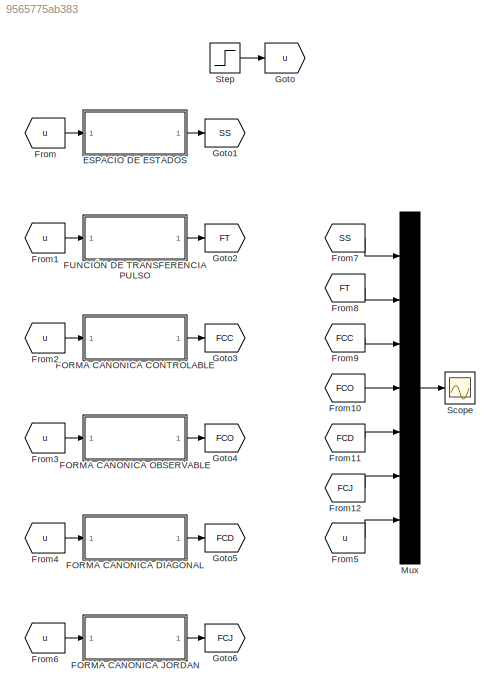
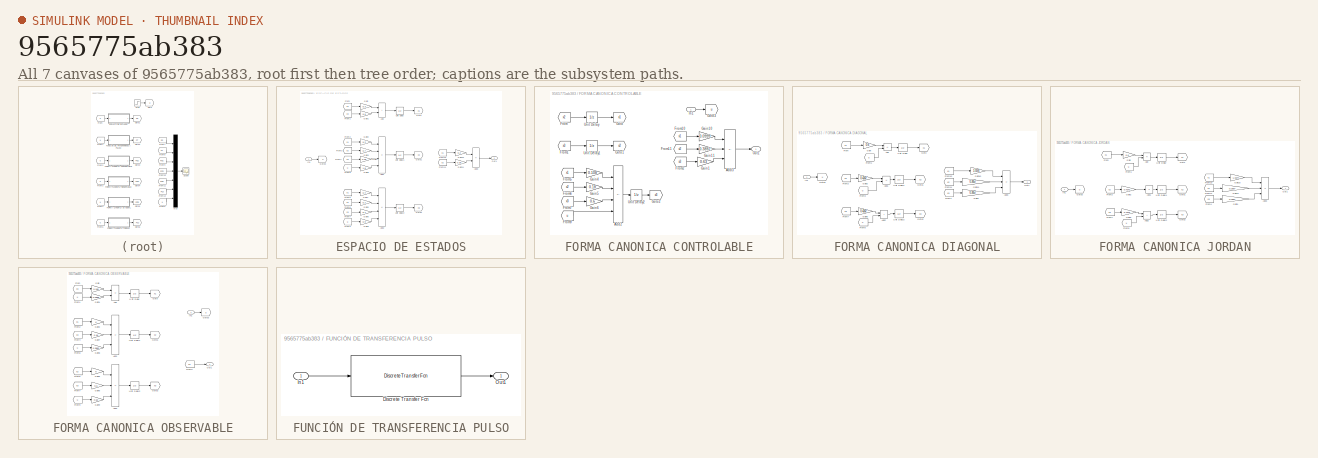
[diagram: thumbnail index - all 7 canvases of the model, root first then tree order]
MODEL slx_9565775ab383
KIND model
CONFIG AbsTol = auto
CONFIG EnableMultiTasking = off
CONFIG FixedStep = 0.001
CONFIG MaxStep = auto
CONFIG MinStep = auto
CONFIG RelTol = 1e-3
CONFIG SampleTimeConstraint = Unconstrained
CONFIG SolverName = FixedStepDiscrete
CONFIG StartTime = 0.0
CONFIG StopTime = 0.2
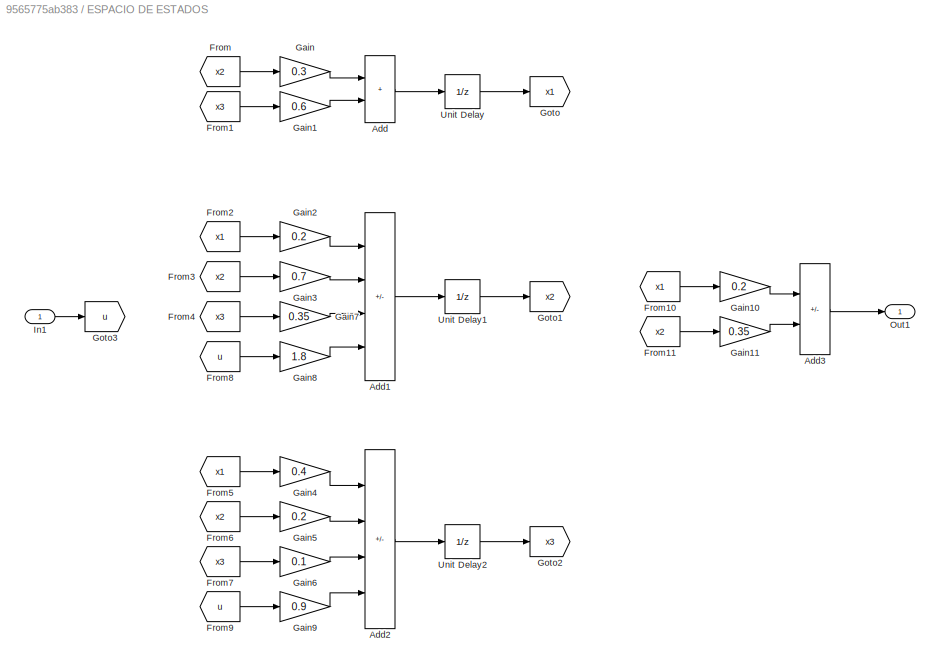
BLOCK [SubSystem] ESPACIO DE ESTADOS
  Ports = [1, 1]
  RequestExecContextInheritance = off
BLOCK [Sum] ESPACIO DE ESTADOS/Add
  IconShape = rectangular
  Ports = [2, 1]
BLOCK [Sum] ESPACIO DE ESTADOS/Add1
  IconShape = rectangular
  Inputs = +--+
  Ports = [4, 1]
BLOCK [Sum] ESPACIO DE ESTADOS/Add2
  IconShape = rectangular
  Inputs = -+++
  Ports = [4, 1]
BLOCK [Sum] ESPACIO DE ESTADOS/Add3
  IconShape = rectangular
  Inputs = +-
  Ports = [2, 1]
BLOCK [From] ESPACIO DE ESTADOS/From
  GotoTag = x2
BLOCK [From] ESPACIO DE ESTADOS/From1
  GotoTag = x3
BLOCK [From] ESPACIO DE ESTADOS/From10
  GotoTag = x1
BLOCK [From] ESPACIO DE ESTADOS/From11
  GotoTag = x2
BLOCK [From] ESPACIO DE ESTADOS/From2
  GotoTag = x1
BLOCK [From] ESPACIO DE ESTADOS/From3
  GotoTag = x2
BLOCK [From] ESPACIO DE ESTADOS/From4
  GotoTag = x3
BLOCK [From] ESPACIO DE ESTADOS/From5
  GotoTag = x1
BLOCK [From] ESPACIO DE ESTADOS/From6
  GotoTag = x2
BLOCK [From] ESPACIO DE ESTADOS/From7
  GotoTag = x3
BLOCK [From] ESPACIO DE ESTADOS/From8
  GotoTag = u
BLOCK [From] ESPACIO DE ESTADOS/From9
  GotoTag = u
BLOCK [Gain] ESPACIO DE ESTADOS/Gain
  Gain = 0.3
BLOCK [Gain] ESPACIO DE ESTADOS/Gain1
  Gain = 0.6
BLOCK [Gain] ESPACIO DE ESTADOS/Gain10
  Gain = 0.2
BLOCK [Gain] ESPACIO DE ESTADOS/Gain11
  Gain = 0.35
BLOCK [Gain] ESPACIO DE ESTADOS/Gain2
  Gain = 0.2
BLOCK [Gain] ESPACIO DE ESTADOS/Gain3
  Gain = 0.7
BLOCK [Gain] ESPACIO DE ESTADOS/Gain4
  Gain = 0.4
BLOCK [Gain] ESPACIO DE ESTADOS/Gain5
  Gain = 0.2
BLOCK [Gain] ESPACIO DE ESTADOS/Gain6
  Gain = 0.1
BLOCK [Gain] ESPACIO DE ESTADOS/Gain7
  Gain = 0.35
BLOCK [Gain] ESPACIO DE ESTADOS/Gain8
  Gain = 1.8
BLOCK [Gain] ESPACIO DE ESTADOS/Gain9
  Gain = 0.9
BLOCK [Goto] ESPACIO DE ESTADOS/Goto
  GotoTag = x1
BLOCK [Goto] ESPACIO DE ESTADOS/Goto1
  GotoTag = x2
BLOCK [Goto] ESPACIO DE ESTADOS/Goto2
  GotoTag = x3
BLOCK [Goto] ESPACIO DE ESTADOS/Goto3
  GotoTag = u
BLOCK [Inport] ESPACIO DE ESTADOS/In1
BLOCK [Outport] ESPACIO DE ESTADOS/Out1
BLOCK [UnitDelay] ESPACIO DE ESTADOS/Unit Delay
  HasFrameUpgradeWarning = on
  SampleTime = -1
BLOCK [UnitDelay] ESPACIO DE ESTADOS/Unit Delay1
  HasFrameUpgradeWarning = on
  SampleTime = -1
BLOCK [UnitDelay] ESPACIO DE ESTADOS/Unit Delay2
  HasFrameUpgradeWarning = on
  SampleTime = -1
BLOCK [SubSystem] FORMA CANONICA CONTROLABLE
  Ports = [1, 1]
  RequestExecContextInheritance = off
BLOCK [Sum] FORMA CANONICA CONTROLABLE/Add2
  IconShape = rectangular
  Inputs = ---+
  Ports = [4, 1]
BLOCK [Sum] FORMA CANONICA CONTROLABLE/Add3
  IconShape = rectangular
  Inputs = -+-
  Ports = [3, 1]
BLOCK [From] FORMA CANONICA CONTROLABLE/From
  GotoTag = x2
BLOCK [From] FORMA CANONICA CONTROLABLE/From1
  GotoTag = x3
BLOCK [From] FORMA CANONICA CONTROLABLE/From10
  GotoTag = x1
BLOCK [From] FORMA CANONICA CONTROLABLE/From11
  GotoTag = x2
BLOCK [From] FORMA CANONICA CONTROLABLE/From2
  GotoTag = x3
BLOCK [From] FORMA CANONICA CONTROLABLE/From5
  GotoTag = x1
BLOCK [From] FORMA CANONICA CONTROLABLE/From6
  GotoTag = x2
BLOCK [From] FORMA CANONICA CONTROLABLE/From7
  GotoTag = x3
BLOCK [From] FORMA CANONICA CONTROLABLE/From9
  GotoTag = u
BLOCK [Gain] FORMA CANONICA CONTROLABLE/Gain1
  Gain = 0.63
BLOCK [Gain] FORMA CANONICA CONTROLABLE/Gain10
  Gain = 0.0999
BLOCK [Gain] FORMA CANONICA CONTROLABLE/Gain11
  Gain = 0.3892
BLOCK [Gain] FORMA CANONICA CONTROLABLE/Gain4
  Gain = 0.108
BLOCK [Gain] FORMA CANONICA CONTROLABLE/Gain5
  Gain = 0.18
BLOCK [Gain] FORMA CANONICA CONTROLABLE/Gain6
  Gain = 0.6
BLOCK [Goto] FORMA CANONICA CONTROLABLE/Goto
  GotoTag = x1
BLOCK [Goto] FORMA CANONICA CONTROLABLE/Goto1
  GotoTag = x2
BLOCK [Goto] FORMA CANONICA CONTROLABLE/Goto2
  GotoTag = x3
BLOCK [Goto] FORMA CANONICA CONTROLABLE/Goto3
  GotoTag = u
BLOCK [Inport] FORMA CANONICA CONTROLABLE/In1
BLOCK [Outport] FORMA CANONICA CONTROLABLE/Out1
BLOCK [UnitDelay] FORMA CANONICA CONTROLABLE/Unit Delay
  HasFrameUpgradeWarning = on
  SampleTime = -1
BLOCK [UnitDelay] FORMA CANONICA CONTROLABLE/Unit Delay1
  HasFrameUpgradeWarning = on
  SampleTime = -1
BLOCK [UnitDelay] FORMA CANONICA CONTROLABLE/Unit Delay2
  HasFrameUpgradeWarning = on
  SampleTime = -1
BLOCK [SubSystem] FORMA CANONICA DIAGONAL
  Ports = [1, 1]
  RequestExecContextInheritance = off
BLOCK [Sum] FORMA CANONICA DIAGONAL/Add
  IconShape = rectangular
  Inputs = -+
  Ports = [2, 1]
BLOCK [Sum] FORMA CANONICA DIAGONAL/Add1
  IconShape = rectangular
  Inputs = -+
  Ports = [2, 1]
BLOCK [Sum] FORMA CANONICA DIAGONAL/Add2
  IconShape = rectangular
  Ports = [2, 1]
BLOCK [Sum] FORMA CANONICA DIAGONAL/Add3
  IconShape = rectangular
  Inputs = -++
  Ports = [3, 1]
BLOCK [From] FORMA CANONICA DIAGONAL/From
  GotoTag = x1
BLOCK [From] FORMA CANONICA DIAGONAL/From1
  GotoTag = u
BLOCK [From] FORMA CANONICA DIAGONAL/From10
  GotoTag = x1
BLOCK [From] FORMA CANONICA DIAGONAL/From11
  GotoTag = x2
BLOCK [From] FORMA CANONICA DIAGONAL/From2
  GotoTag = x2
BLOCK [From] FORMA CANONICA DIAGONAL/From3
  GotoTag = u
BLOCK [From] FORMA CANONICA DIAGONAL/From4
  GotoTag = x3
BLOCK [From] FORMA CANONICA DIAGONAL/From5
  GotoTag = u
BLOCK [From] FORMA CANONICA DIAGONAL/From7
  GotoTag = x3
BLOCK [Gain] FORMA CANONICA DIAGONAL/Gain
  Gain = 0.6
BLOCK [Gain] FORMA CANONICA DIAGONAL/Gain1
  Gain = 0.2657
  OutDataTypeStr = double
BLOCK [Gain] FORMA CANONICA DIAGONAL/Gain10
  Gain = 1.0374
BLOCK [Gain] FORMA CANONICA DIAGONAL/Gain11
  Gain = 0.2657
  OutDataTypeStr = double
BLOCK [Gain] FORMA CANONICA DIAGONAL/Gain2
  Gain = 0.4242
BLOCK [Gain] FORMA CANONICA DIAGONAL/Gain6
  Gain = 0.4242
BLOCK [Goto] FORMA CANONICA DIAGONAL/Goto
  GotoTag = x1
BLOCK [Goto] FORMA CANONICA DIAGONAL/Goto1
  GotoTag = x2
BLOCK [Goto] FORMA CANONICA DIAGONAL/Goto2
  GotoTag = x3
BLOCK [Goto] FORMA CANONICA DIAGONAL/Goto3
  GotoTag = u
BLOCK [Inport] FORMA CANONICA DIAGONAL/In1
BLOCK [Outport] FORMA CANONICA DIAGONAL/Out1
BLOCK [UnitDelay] FORMA CANONICA DIAGONAL/Unit Delay
  HasFrameUpgradeWarning = on
  SampleTime = -1
BLOCK [UnitDelay] FORMA CANONICA DIAGONAL/Unit Delay1
  HasFrameUpgradeWarning = on
  SampleTime = -1
BLOCK [UnitDelay] FORMA CANONICA DIAGONAL/Unit Delay2
  HasFrameUpgradeWarning = on
  SampleTime = -1
BLOCK [SubSystem] FORMA CANONICA JORDAN
  Ports = [1, 1]
  RequestExecContextInheritance = off
BLOCK [Sum] FORMA CANONICA JORDAN/Add
  IconShape = rectangular
  Inputs = -+
  Ports = [2, 1]
BLOCK [Sum] FORMA CANONICA JORDAN/Add1
  IconShape = rectangular
  Inputs = -
  Ports = [1, 1]
BLOCK [Sum] FORMA CANONICA JORDAN/Add2
  IconShape = rectangular
  Ports = [2, 1]
BLOCK [Sum] FORMA CANONICA JORDAN/Add3
  IconShape = rectangular
  Inputs = -++
  Ports = [3, 1]
BLOCK [From] FORMA CANONICA JORDAN/From
  GotoTag = x1
BLOCK [From] FORMA CANONICA JORDAN/From1
  GotoTag = u
BLOCK [From] FORMA CANONICA JORDAN/From10
  GotoTag = x1
BLOCK [From] FORMA CANONICA JORDAN/From11
  GotoTag = x2
BLOCK [From] FORMA CANONICA JORDAN/From2
  GotoTag = x2
BLOCK [From] FORMA CANONICA JORDAN/From4
  GotoTag = x3
BLOCK [From] FORMA CANONICA JORDAN/From5
  GotoTag = u
BLOCK [From] FORMA CANONICA JORDAN/From7
  GotoTag = x3
BLOCK [Gain] FORMA CANONICA JORDAN/Gain
  Gain = 0.6
BLOCK [Gain] FORMA CANONICA JORDAN/Gain1
  Gain = 0.2657
  OutDataTypeStr = double
BLOCK [Gain] FORMA CANONICA JORDAN/Gain10
  Gain = 1.0374
BLOCK [Gain] FORMA CANONICA JORDAN/Gain11
  Gain = 0.2657
  OutDataTypeStr = double
BLOCK [Gain] FORMA CANONICA JORDAN/Gain2
  Gain = 0.4242
BLOCK [Gain] FORMA CANONICA JORDAN/Gain6
  Gain = 0.4242
BLOCK [Goto] FORMA CANONICA JORDAN/Goto
  GotoTag = x1
BLOCK [Goto] FORMA CANONICA JORDAN/Goto1
  GotoTag = x2
BLOCK [Goto] FORMA CANONICA JORDAN/Goto2
  GotoTag = x3
BLOCK [Goto] FORMA CANONICA JORDAN/Goto3
  GotoTag = u
BLOCK [Inport] FORMA CANONICA JORDAN/In1
BLOCK [Outport] FORMA CANONICA JORDAN/Out1
BLOCK [UnitDelay] FORMA CANONICA JORDAN/Unit Delay
  HasFrameUpgradeWarning = on
  SampleTime = -1
BLOCK [UnitDelay] FORMA CANONICA JORDAN/Unit Delay1
  HasFrameUpgradeWarning = on
  SampleTime = -1
BLOCK [UnitDelay] FORMA CANONICA JORDAN/Unit Delay2
  HasFrameUpgradeWarning = on
  SampleTime = -1
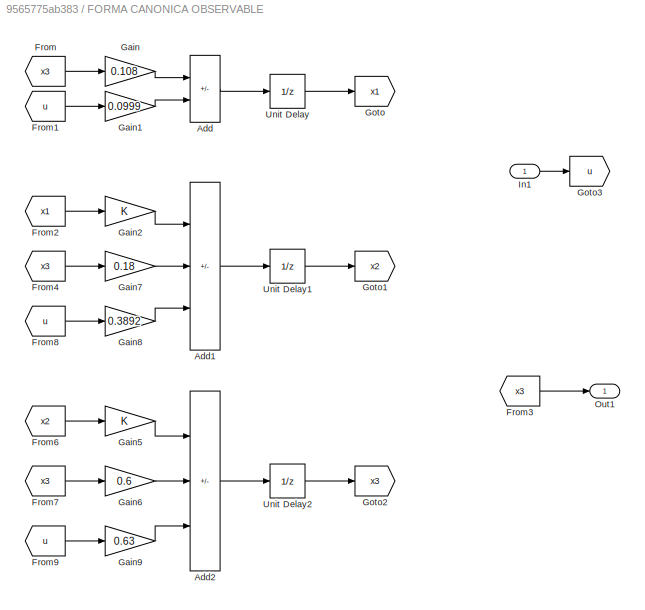
BLOCK [SubSystem] FORMA CANONICA OBSERVABLE
  Ports = [1, 1]
  RequestExecContextInheritance = off
BLOCK [Sum] FORMA CANONICA OBSERVABLE/Add
  IconShape = rectangular
  Inputs = --
  Ports = [2, 1]
BLOCK [Sum] FORMA CANONICA OBSERVABLE/Add1
  IconShape = rectangular
  Inputs = +-+
  Ports = [3, 1]
BLOCK [Sum] FORMA CANONICA OBSERVABLE/Add2
  IconShape = rectangular
  Inputs = +--
  Ports = [3, 1]
BLOCK [From] FORMA CANONICA OBSERVABLE/From
  GotoTag = x3
BLOCK [From] FORMA CANONICA OBSERVABLE/From1
  GotoTag = u
BLOCK [From] FORMA CANONICA OBSERVABLE/From2
  GotoTag = x1
BLOCK [From] FORMA CANONICA OBSERVABLE/From3
  GotoTag = x3
BLOCK [From] FORMA CANONICA OBSERVABLE/From4
  GotoTag = x3
BLOCK [From] FORMA CANONICA OBSERVABLE/From6
  GotoTag = x2
BLOCK [From] FORMA CANONICA OBSERVABLE/From7
  GotoTag = x3
BLOCK [From] FORMA CANONICA OBSERVABLE/From8
  GotoTag = u
BLOCK [From] FORMA CANONICA OBSERVABLE/From9
  GotoTag = u
BLOCK [Gain] FORMA CANONICA OBSERVABLE/Gain
  Gain = 0.108
BLOCK [Gain] FORMA CANONICA OBSERVABLE/Gain1
  Gain = 0.0999
BLOCK [Gain] FORMA CANONICA OBSERVABLE/Gain2
BLOCK [Gain] FORMA CANONICA OBSERVABLE/Gain5
BLOCK [Gain] FORMA CANONICA OBSERVABLE/Gain6
  Gain = 0.6
BLOCK [Gain] FORMA CANONICA OBSERVABLE/Gain7
  Gain = 0.18
BLOCK [Gain] FORMA CANONICA OBSERVABLE/Gain8
  Gain = 0.3892
BLOCK [Gain] FORMA CANONICA OBSERVABLE/Gain9
  Gain = 0.63
BLOCK [Goto] FORMA CANONICA OBSERVABLE/Goto
  GotoTag = x1
BLOCK [Goto] FORMA CANONICA OBSERVABLE/Goto1
  GotoTag = x2
BLOCK [Goto] FORMA CANONICA OBSERVABLE/Goto2
  GotoTag = x3
BLOCK [Goto] FORMA CANONICA OBSERVABLE/Goto3
  GotoTag = u
BLOCK [Inport] FORMA CANONICA OBSERVABLE/In1
BLOCK [Outport] FORMA CANONICA OBSERVABLE/Out1
BLOCK [UnitDelay] FORMA CANONICA OBSERVABLE/Unit Delay
  HasFrameUpgradeWarning = on
  SampleTime = -1
BLOCK [UnitDelay] FORMA CANONICA OBSERVABLE/Unit Delay1
  HasFrameUpgradeWarning = on
  SampleTime = -1
BLOCK [UnitDelay] FORMA CANONICA OBSERVABLE/Unit Delay2
  HasFrameUpgradeWarning = on
  SampleTime = -1
BLOCK [SubSystem] FUNCIÓN DE TRANSFERENCIA PULSO
  Ports = [1, 1]
  RequestExecContextInheritance = off
BLOCK [DiscreteTransferFcn] FUNCIÓN DE TRANSFERENCIA PULSO/Discrete Transfer Fcn
  Denominator = [1 0.6 0.18 0.108]
  InputPortMap = u0
  Numerator = [-0.63 0.38925 -0.0999]
  Ports = [1, 1]
BLOCK [Inport] FUNCIÓN DE TRANSFERENCIA PULSO/In1
BLOCK [Outport] FUNCIÓN DE TRANSFERENCIA PULSO/Out1
BLOCK [From] From
  GotoTag = u
BLOCK [From] From1
  GotoTag = u
BLOCK [From] From10
  GotoTag = FCO
BLOCK [From] From11
  GotoTag = FCD
BLOCK [From] From12
  GotoTag = FCJ
BLOCK [From] From2
  GotoTag = u
BLOCK [From] From3
  GotoTag = u
BLOCK [From] From4
  GotoTag = u
BLOCK [From] From5
  GotoTag = u
BLOCK [From] From6
  GotoTag = u
BLOCK [From] From7
  GotoTag = SS
BLOCK [From] From8
  GotoTag = FT
BLOCK [From] From9
  GotoTag = FCC
BLOCK [Goto] Goto
  GotoTag = u
BLOCK [Goto] Goto1
  GotoTag = SS
BLOCK [Goto] Goto2
  GotoTag = FT
BLOCK [Goto] Goto3
  GotoTag = FCC
BLOCK [Goto] Goto4
  GotoTag = FCO
BLOCK [Goto] Goto5
  GotoTag = FCD
BLOCK [Goto] Goto6
  GotoTag = FCJ
BLOCK [Mux] Mux
  DisplayOption = bar
  Inputs = 7
  Ports = [7, 1]
BLOCK [Scope] Scope
  Floating = off
  NumInputPorts = 1
  Ports = [1]
  ScopeSpecificationString = Simulink.scopes.TimeScopeBlockCfg('CurrentConfiguration', extmgr.ConfigurationSet(extmgr.Configuration('Core','General UI',true),extmgr.Configuration('Core','Source UI',true),extmgr.Configuration('Sources','WiredSimulink',true),extmgr.Configuration('Visuals','Time Domain',true,'SerializedDisplays',{struct('MinYLimReal','-0.66187','MaxYLimReal','0.16571','YLabelReal','','MinYLimMag','0.00000','MaxY...<+1531ch>
BLOCK [Step] Step
  SampleTime = 0
  Time = 0
LINE ESPACIO DE ESTADOS/Add1:1 -> ESPACIO DE ESTADOS/Unit Delay1:1
LINE ESPACIO DE ESTADOS/Add2:1 -> ESPACIO DE ESTADOS/Unit Delay2:1
LINE ESPACIO DE ESTADOS/Add3:1 -> ESPACIO DE ESTADOS/Out1:1
LINE ESPACIO DE ESTADOS/Add:1 -> ESPACIO DE ESTADOS/Unit Delay:1
LINE ESPACIO DE ESTADOS/From10:1 -> ESPACIO DE ESTADOS/Gain10:1
LINE ESPACIO DE ESTADOS/From11:1 -> ESPACIO DE ESTADOS/Gain11:1
LINE ESPACIO DE ESTADOS/From1:1 -> ESPACIO DE ESTADOS/Gain1:1
LINE ESPACIO DE ESTADOS/From2:1 -> ESPACIO DE ESTADOS/Gain2:1
LINE ESPACIO DE ESTADOS/From3:1 -> ESPACIO DE ESTADOS/Gain3:1
LINE ESPACIO DE ESTADOS/From4:1 -> ESPACIO DE ESTADOS/Gain7:1
LINE ESPACIO DE ESTADOS/From5:1 -> ESPACIO DE ESTADOS/Gain4:1
LINE ESPACIO DE ESTADOS/From6:1 -> ESPACIO DE ESTADOS/Gain5:1
LINE ESPACIO DE ESTADOS/From7:1 -> ESPACIO DE ESTADOS/Gain6:1
LINE ESPACIO DE ESTADOS/From8:1 -> ESPACIO DE ESTADOS/Gain8:1
LINE ESPACIO DE ESTADOS/From9:1 -> ESPACIO DE ESTADOS/Gain9:1
LINE ESPACIO DE ESTADOS/From:1 -> ESPACIO DE ESTADOS/Gain:1
LINE ESPACIO DE ESTADOS/Gain10:1 -> ESPACIO DE ESTADOS/Add3:1
LINE ESPACIO DE ESTADOS/Gain11:1 -> ESPACIO DE ESTADOS/Add3:2
LINE ESPACIO DE ESTADOS/Gain1:1 -> ESPACIO DE ESTADOS/Add:2
LINE ESPACIO DE ESTADOS/Gain2:1 -> ESPACIO DE ESTADOS/Add1:1
LINE ESPACIO DE ESTADOS/Gain3:1 -> ESPACIO DE ESTADOS/Add1:2
LINE ESPACIO DE ESTADOS/Gain4:1 -> ESPACIO DE ESTADOS/Add2:1
LINE ESPACIO DE ESTADOS/Gain5:1 -> ESPACIO DE ESTADOS/Add2:2
LINE ESPACIO DE ESTADOS/Gain6:1 -> ESPACIO DE ESTADOS/Add2:3
LINE ESPACIO DE ESTADOS/Gain7:1 -> ESPACIO DE ESTADOS/Add1:3
LINE ESPACIO DE ESTADOS/Gain8:1 -> ESPACIO DE ESTADOS/Add1:4
LINE ESPACIO DE ESTADOS/Gain9:1 -> ESPACIO DE ESTADOS/Add2:4
LINE ESPACIO DE ESTADOS/Gain:1 -> ESPACIO DE ESTADOS/Add:1
LINE ESPACIO DE ESTADOS/In1:1 -> ESPACIO DE ESTADOS/Goto3:1
LINE ESPACIO DE ESTADOS/Unit Delay1:1 -> ESPACIO DE ESTADOS/Goto1:1
LINE ESPACIO DE ESTADOS/Unit Delay2:1 -> ESPACIO DE ESTADOS/Goto2:1
LINE ESPACIO DE ESTADOS/Unit Delay:1 -> ESPACIO DE ESTADOS/Goto:1
LINE ESPACIO DE ESTADOS:1 -> Goto1:1
LINE FORMA CANONICA CONTROLABLE/Add2:1 -> FORMA CANONICA CONTROLABLE/Unit Delay2:1
LINE FORMA CANONICA CONTROLABLE/Add3:1 -> FORMA CANONICA CONTROLABLE/Out1:1
LINE FORMA CANONICA CONTROLABLE/From10:1 -> FORMA CANONICA CONTROLABLE/Gain10:1
LINE FORMA CANONICA CONTROLABLE/From11:1 -> FORMA CANONICA CONTROLABLE/Gain11:1
LINE FORMA CANONICA CONTROLABLE/From1:1 -> FORMA CANONICA CONTROLABLE/Unit Delay1:1
LINE FORMA CANONICA CONTROLABLE/From2:1 -> FORMA CANONICA CONTROLABLE/Gain1:1
LINE FORMA CANONICA CONTROLABLE/From5:1 -> FORMA CANONICA CONTROLABLE/Gain4:1
LINE FORMA CANONICA CONTROLABLE/From6:1 -> FORMA CANONICA CONTROLABLE/Gain5:1
LINE FORMA CANONICA CONTROLABLE/From7:1 -> FORMA CANONICA CONTROLABLE/Gain6:1
LINE FORMA CANONICA CONTROLABLE/From9:1 -> FORMA CANONICA CONTROLABLE/Add2:4
LINE FORMA CANONICA CONTROLABLE/From:1 -> FORMA CANONICA CONTROLABLE/Unit Delay:1
LINE FORMA CANONICA CONTROLABLE/Gain10:1 -> FORMA CANONICA CONTROLABLE/Add3:1
LINE FORMA CANONICA CONTROLABLE/Gain11:1 -> FORMA CANONICA CONTROLABLE/Add3:2
LINE FORMA CANONICA CONTROLABLE/Gain1:1 -> FORMA CANONICA CONTROLABLE/Add3:3
LINE FORMA CANONICA CONTROLABLE/Gain4:1 -> FORMA CANONICA CONTROLABLE/Add2:1
LINE FORMA CANONICA CONTROLABLE/Gain5:1 -> FORMA CANONICA CONTROLABLE/Add2:2
LINE FORMA CANONICA CONTROLABLE/Gain6:1 -> FORMA CANONICA CONTROLABLE/Add2:3
LINE FORMA CANONICA CONTROLABLE/In1:1 -> FORMA CANONICA CONTROLABLE/Goto3:1
LINE FORMA CANONICA CONTROLABLE/Unit Delay1:1 -> FORMA CANONICA CONTROLABLE/Goto1:1
LINE FORMA CANONICA CONTROLABLE/Unit Delay2:1 -> FORMA CANONICA CONTROLABLE/Goto2:1
LINE FORMA CANONICA CONTROLABLE/Unit Delay:1 -> FORMA CANONICA CONTROLABLE/Goto:1
LINE FORMA CANONICA CONTROLABLE:1 -> Goto3:1
LINE FORMA CANONICA DIAGONAL/Add1:1 -> FORMA CANONICA DIAGONAL/Unit Delay1:1
LINE FORMA CANONICA DIAGONAL/Add2:1 -> FORMA CANONICA DIAGONAL/Unit Delay2:1
LINE FORMA CANONICA DIAGONAL/Add3:1 -> FORMA CANONICA DIAGONAL/Out1:1
LINE FORMA CANONICA DIAGONAL/Add:1 -> FORMA CANONICA DIAGONAL/Unit Delay:1
LINE FORMA CANONICA DIAGONAL/From10:1 -> FORMA CANONICA DIAGONAL/Gain10:1
LINE FORMA CANONICA DIAGONAL/From11:1 -> FORMA CANONICA DIAGONAL/Gain11:1
LINE FORMA CANONICA DIAGONAL/From1:1 -> FORMA CANONICA DIAGONAL/Add:2
LINE FORMA CANONICA DIAGONAL/From2:1 -> FORMA CANONICA DIAGONAL/Gain2:1
LINE FORMA CANONICA DIAGONAL/From3:1 -> FORMA CANONICA DIAGONAL/Add1:2
LINE FORMA CANONICA DIAGONAL/From4:1 -> FORMA CANONICA DIAGONAL/Gain1:1
LINE FORMA CANONICA DIAGONAL/From5:1 -> FORMA CANONICA DIAGONAL/Add2:2
LINE FORMA CANONICA DIAGONAL/From7:1 -> FORMA CANONICA DIAGONAL/Gain6:1
LINE FORMA CANONICA DIAGONAL/From:1 -> FORMA CANONICA DIAGONAL/Gain:1
LINE FORMA CANONICA DIAGONAL/Gain10:1 -> FORMA CANONICA DIAGONAL/Add3:1
LINE FORMA CANONICA DIAGONAL/Gain11:1 -> FORMA CANONICA DIAGONAL/Add3:2
LINE FORMA CANONICA DIAGONAL/Gain1:1 -> FORMA CANONICA DIAGONAL/Add3:3
LINE FORMA CANONICA DIAGONAL/Gain2:1 -> FORMA CANONICA DIAGONAL/Add1:1
LINE FORMA CANONICA DIAGONAL/Gain6:1 -> FORMA CANONICA DIAGONAL/Add2:1
LINE FORMA CANONICA DIAGONAL/Gain:1 -> FORMA CANONICA DIAGONAL/Add:1
LINE FORMA CANONICA DIAGONAL/In1:1 -> FORMA CANONICA DIAGONAL/Goto3:1
LINE FORMA CANONICA DIAGONAL/Unit Delay1:1 -> FORMA CANONICA DIAGONAL/Goto1:1
LINE FORMA CANONICA DIAGONAL/Unit Delay2:1 -> FORMA CANONICA DIAGONAL/Goto2:1
LINE FORMA CANONICA DIAGONAL/Unit Delay:1 -> FORMA CANONICA DIAGONAL/Goto:1
LINE FORMA CANONICA DIAGONAL:1 -> Goto5:1
LINE FORMA CANONICA JORDAN/Add1:1 -> FORMA CANONICA JORDAN/Unit Delay1:1
LINE FORMA CANONICA JORDAN/Add2:1 -> FORMA CANONICA JORDAN/Unit Delay2:1
LINE FORMA CANONICA JORDAN/Add3:1 -> FORMA CANONICA JORDAN/Out1:1
LINE FORMA CANONICA JORDAN/Add:1 -> FORMA CANONICA JORDAN/Unit Delay:1
LINE FORMA CANONICA JORDAN/From10:1 -> FORMA CANONICA JORDAN/Gain10:1
LINE FORMA CANONICA JORDAN/From11:1 -> FORMA CANONICA JORDAN/Gain11:1
LINE FORMA CANONICA JORDAN/From1:1 -> FORMA CANONICA JORDAN/Add:2
LINE FORMA CANONICA JORDAN/From2:1 -> FORMA CANONICA JORDAN/Gain2:1
LINE FORMA CANONICA JORDAN/From4:1 -> FORMA CANONICA JORDAN/Gain1:1
LINE FORMA CANONICA JORDAN/From5:1 -> FORMA CANONICA JORDAN/Add2:2
LINE FORMA CANONICA JORDAN/From7:1 -> FORMA CANONICA JORDAN/Gain6:1
LINE FORMA CANONICA JORDAN/From:1 -> FORMA CANONICA JORDAN/Gain:1
LINE FORMA CANONICA JORDAN/Gain10:1 -> FORMA CANONICA JORDAN/Add3:1
LINE FORMA CANONICA JORDAN/Gain11:1 -> FORMA CANONICA JORDAN/Add3:2
LINE FORMA CANONICA JORDAN/Gain1:1 -> FORMA CANONICA JORDAN/Add3:3
LINE FORMA CANONICA JORDAN/Gain2:1 -> FORMA CANONICA JORDAN/Add1:1
LINE FORMA CANONICA JORDAN/Gain6:1 -> FORMA CANONICA JORDAN/Add2:1
LINE FORMA CANONICA JORDAN/Gain:1 -> FORMA CANONICA JORDAN/Add:1
LINE FORMA CANONICA JORDAN/In1:1 -> FORMA CANONICA JORDAN/Goto3:1
LINE FORMA CANONICA JORDAN/Unit Delay1:1 -> FORMA CANONICA JORDAN/Goto1:1
LINE FORMA CANONICA JORDAN/Unit Delay2:1 -> FORMA CANONICA JORDAN/Goto2:1
LINE FORMA CANONICA JORDAN/Unit Delay:1 -> FORMA CANONICA JORDAN/Goto:1
LINE FORMA CANONICA JORDAN:1 -> Goto6:1
LINE FORMA CANONICA OBSERVABLE/Add1:1 -> FORMA CANONICA OBSERVABLE/Unit Delay1:1
LINE FORMA CANONICA OBSERVABLE/Add2:1 -> FORMA CANONICA OBSERVABLE/Unit Delay2:1
LINE FORMA CANONICA OBSERVABLE/Add:1 -> FORMA CANONICA OBSERVABLE/Unit Delay:1
LINE FORMA CANONICA OBSERVABLE/From1:1 -> FORMA CANONICA OBSERVABLE/Gain1:1
LINE FORMA CANONICA OBSERVABLE/From2:1 -> FORMA CANONICA OBSERVABLE/Gain2:1
LINE FORMA CANONICA OBSERVABLE/From3:1 -> FORMA CANONICA OBSERVABLE/Out1:1
LINE FORMA CANONICA OBSERVABLE/From4:1 -> FORMA CANONICA OBSERVABLE/Gain7:1
LINE FORMA CANONICA OBSERVABLE/From6:1 -> FORMA CANONICA OBSERVABLE/Gain5:1
LINE FORMA CANONICA OBSERVABLE/From7:1 -> FORMA CANONICA OBSERVABLE/Gain6:1
LINE FORMA CANONICA OBSERVABLE/From8:1 -> FORMA CANONICA OBSERVABLE/Gain8:1
LINE FORMA CANONICA OBSERVABLE/From9:1 -> FORMA CANONICA OBSERVABLE/Gain9:1
LINE FORMA CANONICA OBSERVABLE/From:1 -> FORMA CANONICA OBSERVABLE/Gain:1
LINE FORMA CANONICA OBSERVABLE/Gain1:1 -> FORMA CANONICA OBSERVABLE/Add:2
LINE FORMA CANONICA OBSERVABLE/Gain2:1 -> FORMA CANONICA OBSERVABLE/Add1:1
LINE FORMA CANONICA OBSERVABLE/Gain5:1 -> FORMA CANONICA OBSERVABLE/Add2:1
LINE FORMA CANONICA OBSERVABLE/Gain6:1 -> FORMA CANONICA OBSERVABLE/Add2:2
LINE FORMA CANONICA OBSERVABLE/Gain7:1 -> FORMA CANONICA OBSERVABLE/Add1:2
LINE FORMA CANONICA OBSERVABLE/Gain8:1 -> FORMA CANONICA OBSERVABLE/Add1:3
LINE FORMA CANONICA OBSERVABLE/Gain9:1 -> FORMA CANONICA OBSERVABLE/Add2:3
LINE FORMA CANONICA OBSERVABLE/Gain:1 -> FORMA CANONICA OBSERVABLE/Add:1
LINE FORMA CANONICA OBSERVABLE/In1:1 -> FORMA CANONICA OBSERVABLE/Goto3:1
LINE FORMA CANONICA OBSERVABLE/Unit Delay1:1 -> FORMA CANONICA OBSERVABLE/Goto1:1
LINE FORMA CANONICA OBSERVABLE/Unit Delay2:1 -> FORMA CANONICA OBSERVABLE/Goto2:1
LINE FORMA CANONICA OBSERVABLE/Unit Delay:1 -> FORMA CANONICA OBSERVABLE/Goto:1
LINE FORMA CANONICA OBSERVABLE:1 -> Goto4:1
LINE FUNCIÓN DE TRANSFERENCIA PULSO/Discrete Transfer Fcn:1 -> FUNCIÓN DE TRANSFERENCIA PULSO/Out1:1
LINE FUNCIÓN DE TRANSFERENCIA PULSO/In1:1 -> FUNCIÓN DE TRANSFERENCIA PULSO/Discrete Transfer Fcn:1
LINE FUNCIÓN DE TRANSFERENCIA PULSO:1 -> Goto2:1
LINE From10:1 -> Mux:4
LINE From11:1 -> Mux:5
LINE From12:1 -> Mux:6
LINE From1:1 -> FUNCIÓN DE TRANSFERENCIA PULSO:1
LINE From2:1 -> FORMA CANONICA CONTROLABLE:1
LINE From3:1 -> FORMA CANONICA OBSERVABLE:1
LINE From4:1 -> FORMA CANONICA DIAGONAL:1
LINE From5:1 -> Mux:7
LINE From6:1 -> FORMA CANONICA JORDAN:1
LINE From7:1 -> Mux:1
LINE From8:1 -> Mux:2
LINE From9:1 -> Mux:3
LINE From:1 -> ESPACIO DE ESTADOS:1
LINE Mux:1 -> Scope:1
LINE Step:1 -> Goto:1
